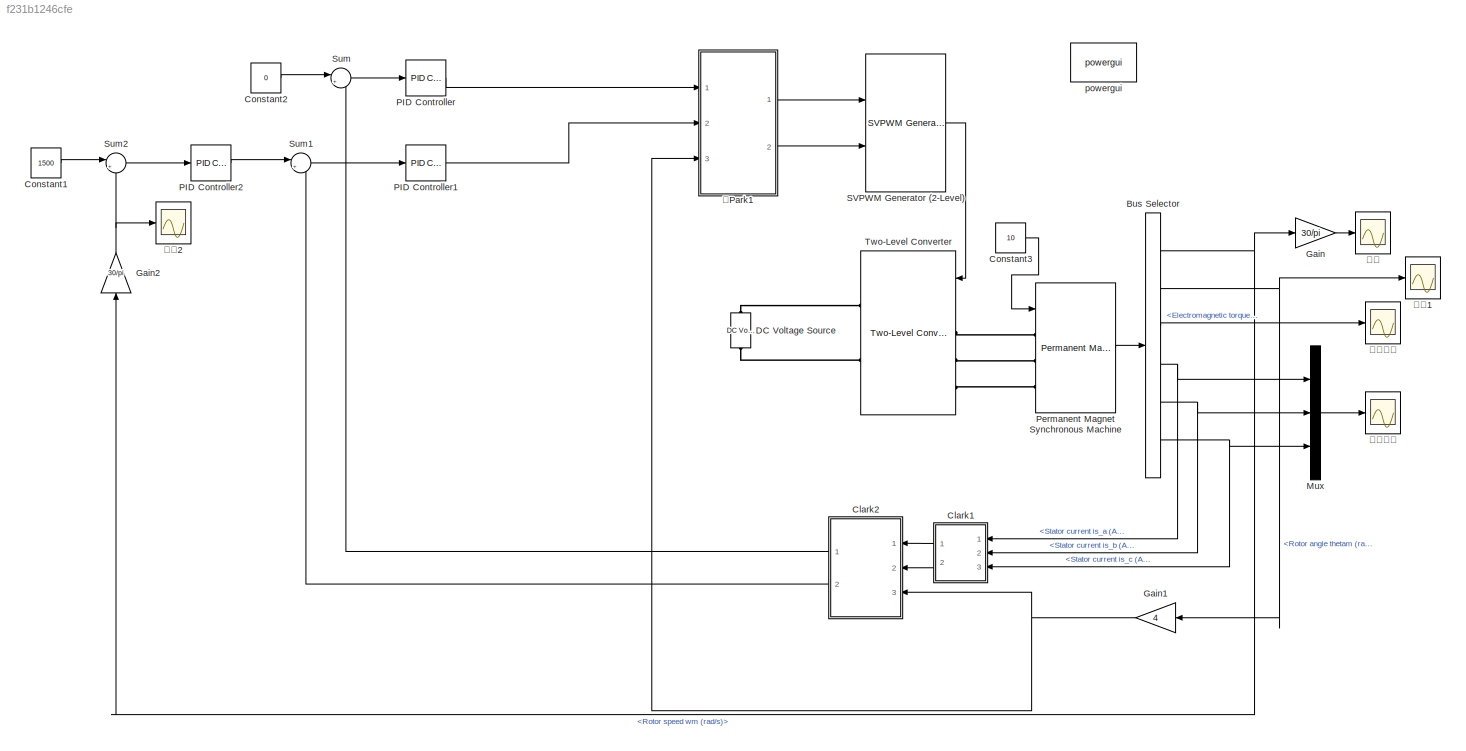
MODEL slx_f231b1246cfe
KIND model
CONFIG AbsTol = auto
CONFIG FixedStep = auto
CONFIG MaxStep = auto
CONFIG MinStep = auto
CONFIG RelTol = 1e-3
CONFIG SampleTimeConstraint = Unconstrained
CONFIG Solver = VariableStepAuto
CONFIG SolverMode = Auto
CONFIG SolverName = VariableStepAuto
CONFIG StartTime = 0.0
CONFIG StopTime = 0.5
BLOCK [BusSelector] Bus Selector
  OutputSignals = Rotor speed wm (rad/s),Rotor angle thetam (rad),Electromagnetic torque Te (N*m),Stator current is_a (A),Stator current is_b (A),Stator current is_c (A)
  Ports = [1, 6]
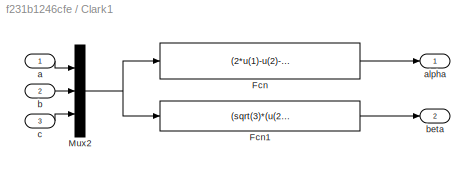
BLOCK [SubSystem] Clark1
  Ports = [3, 2]
  RequestExecContextInheritance = off
  Variant = off
BLOCK [Fcn] Clark1/Fcn
  Expr = (2*u(1)-u(2)-u(3))/3
BLOCK [Fcn] Clark1/Fcn1
  Expr = (sqrt(3)*(u(2)-u(3)))/3
BLOCK [Mux] Clark1/Mux2
  DisplayOption = bar
  Inputs = 3
  Ports = [3, 1]
BLOCK [Inport] Clark1/a
  IconDisplay = Port number
BLOCK [Outport] Clark1/alpha
  IconDisplay = Port number
BLOCK [Inport] Clark1/b
  IconDisplay = Port number
  Port = 2
BLOCK [Outport] Clark1/beta
  IconDisplay = Port number
  Port = 2
BLOCK [Inport] Clark1/c
  IconDisplay = Port number
  Port = 3
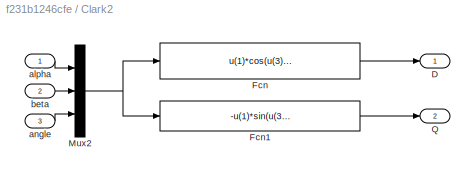
BLOCK [SubSystem] Clark2
  Ports = [3, 2]
  RequestExecContextInheritance = off
  Variant = off
BLOCK [Outport] Clark2/D
  IconDisplay = Port number
BLOCK [Fcn] Clark2/Fcn
  Expr = u(1)*cos(u(3))+u(2)*sin(u(3))
BLOCK [Fcn] Clark2/Fcn1
  Expr = -u(1)*sin(u(3))+u(2)*cos(u(3))
BLOCK [Mux] Clark2/Mux2
  DisplayOption = bar
  Inputs = 3
  Ports = [3, 1]
BLOCK [Outport] Clark2/Q
  IconDisplay = Port number
  Port = 2
BLOCK [Inport] Clark2/alpha
  IconDisplay = Port number
BLOCK [Inport] Clark2/angle
  IconDisplay = Port number
  Port = 3
BLOCK [Inport] Clark2/beta
  IconDisplay = Port number
  Port = 2
BLOCK [Constant] Constant1
  Value = 1500
BLOCK [Constant] Constant2
  Value = 0
BLOCK [Constant] Constant3
  Value = 10
BLOCK [Reference] DC Voltage Source  REF=powerlib/Electrical
Sources/DC Voltage Source
  Ports = [0, 0, 0, 0, 0, 1, 1]
  SourceBlock = powerlib/Electrical\nSources/DC Voltage Source
  SourceType = DC Voltage Source
BLOCK [Gain] Gain
  Gain = 30/pi
  OutDataTypeStr = Inherit: Inherit via internal rule
  ParamDataTypeStr = Inherit: Inherit via internal rule
  SaturateOnIntegerOverflow = off
BLOCK [Gain] Gain1
  Gain = 4
  OutDataTypeStr = Inherit: Inherit via internal rule
  ParamDataTypeStr = Inherit: Inherit via internal rule
  SaturateOnIntegerOverflow = off
BLOCK [Gain] Gain2
  Gain = 30/pi
  OutDataTypeStr = Inherit: Inherit via internal rule
  ParamDataTypeStr = Inherit: Inherit via internal rule
  SaturateOnIntegerOverflow = off
BLOCK [Mux] Mux
  DisplayOption = bar
  Inputs = 3
  Ports = [3, 1]
BLOCK [Reference] PID Controller  REF=simulink/Continuous/PID Controller
  Ports = [1, 1]
  SourceBlock = simulink/Continuous/PID Controller
  SourceType = PID 1dof
BLOCK [Reference] PID Controller1  REF=simulink/Continuous/PID Controller
  Ports = [1, 1]
  SourceBlock = simulink/Continuous/PID Controller
  SourceType = PID 1dof
BLOCK [Reference] PID Controller2  REF=simulink/Continuous/PID Controller
  Ports = [1, 1]
  SourceBlock = simulink/Continuous/PID Controller
  SourceType = PID 1dof
BLOCK [Reference] Permanent Magnet Synchronous Machine  REF=powerlib/Machines/Permanent Magnet
Synchronous Machine
  Ports = [1, 1, 0, 0, 0, 3]
  SourceBlock = powerlib/Machines/Permanent Magnet\nSynchronous Machine
  SourceType = Permanent Magnet Synchronous Machine
BLOCK [Reference] SVPWM Generator (2-Level)  REF=powerlib_meascontrol/Pulse & Signal
Generators/SVPWM Generator
(2-Level)
  Ports = [2, 1]
  SourceBlock = powerlib_meascontrol/Pulse & Signal\nGenerators/SVPWM Generator\n(2-Level)
  SourceType = SVPWM Generator (2-Level)
BLOCK [Sum] Sum
  IconShape = round
  InputSameDT = off
  Inputs = |+-
  OutDataTypeStr = Inherit: Inherit via internal rule
  Ports = [2, 1]
  SaturateOnIntegerOverflow = off
BLOCK [Sum] Sum1
  IconShape = round
  InputSameDT = off
  Inputs = |+-
  OutDataTypeStr = Inherit: Inherit via internal rule
  Ports = [2, 1]
  SaturateOnIntegerOverflow = off
BLOCK [Sum] Sum2
  IconShape = round
  InputSameDT = off
  Inputs = |+-
  OutDataTypeStr = Inherit: Inherit via internal rule
  Ports = [2, 1]
  SaturateOnIntegerOverflow = off
BLOCK [Reference] Two-Level Converter  REF=powerlib/Power
Electronics/Two-Level Converter
  Ports = [2, 0, 0, 0, 0, 3, 2]
  SourceBlock = powerlib/Power\nElectronics/Two-Level Converter
  SourceType = Two-Level Converter
BLOCK [Reference] powergui  REF=powerlib/powergui
  Ports = []
  Priority = 1
  SourceBlock = powerlib/powergui
  SourceType = PSB option menu block
  UserDataPersistent = on
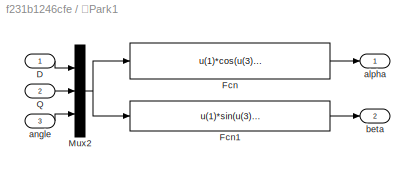
BLOCK [SubSystem] 反Park1
  Ports = [3, 2]
  RequestExecContextInheritance = off
  Variant = off
BLOCK [Inport] 反Park1/D
  IconDisplay = Port number
BLOCK [Fcn] 反Park1/Fcn
  Expr = u(1)*cos(u(3))-u(2)*sin(u(3))
BLOCK [Fcn] 反Park1/Fcn1
  Expr = u(1)*sin(u(3))+u(2)*cos(u(3))
BLOCK [Mux] 反Park1/Mux2
  DisplayOption = bar
  Inputs = 3
  Ports = [3, 1]
BLOCK [Inport] 反Park1/Q
  IconDisplay = Port number
  Port = 2
BLOCK [Outport] 反Park1/alpha
  IconDisplay = Port number
BLOCK [Inport] 反Park1/angle
  IconDisplay = Port number
  Port = 3
BLOCK [Outport] 反Park1/beta
  IconDisplay = Port number
  Port = 2
BLOCK [Scope] 定子电流
  Ports = [1]
  ScopeSpecificationString = Simulink.scopes.TimeScopeBlockCfg('CurrentConfiguration', extmgr.ConfigurationSet(extmgr.Configuration('Core','General UI',true),extmgr.Configuration('Core','Source UI',true),extmgr.Configuration('Sources','WiredSimulink',true,'DataLoggingVariableName','ScopeData3','DataLoggingSaveFormat','Array','DataLoggingDecimation','1','DataLoggingDecimateData',true),extmgr.Configuration('Visuals','Time Domai...<+1614ch>
BLOCK [Scope] 电磁转矩
  Ports = [1]
  ScopeSpecificationString = Simulink.scopes.TimeScopeBlockCfg('CurrentConfiguration', extmgr.ConfigurationSet(extmgr.Configuration('Core','General UI',true),extmgr.Configuration('Core','Source UI',true),extmgr.Configuration('Sources','WiredSimulink',true,'DataLoggingVariableName','ScopeData2','DataLoggingSaveFormat','Array','DataLoggingDecimation','1','DataLoggingDecimateData',true),extmgr.Configuration('Visuals','Time Domai...<+1514ch>
BLOCK [Scope] 转速
  Ports = [1]
  ScopeSpecificationString = Simulink.scopes.TimeScopeBlockCfg('CurrentConfiguration', extmgr.ConfigurationSet(extmgr.Configuration('Core','General UI',true),extmgr.Configuration('Core','Source UI',true),extmgr.Configuration('Sources','WiredSimulink',true),extmgr.Configuration('Visuals','Time Domain',true,'SerializedDisplays',{struct('MinYLimReal','-192.67389','MaxYLimReal','1719.21652','YLabelReal','','MinYLimMag',' 0.00000'...<+1418ch>
BLOCK [Scope] 转速1
  Ports = [1]
  ScopeSpecificationString = Simulink.scopes.TimeScopeBlockCfg('CurrentConfiguration', extmgr.ConfigurationSet(extmgr.Configuration('Core','General UI',true),extmgr.Configuration('Core','Source UI',true),extmgr.Configuration('Sources','WiredSimulink',true,'DataLoggingVariableName','ScopeData1','DataLoggingSaveFormat','Array','DataLoggingDecimation','1','DataLoggingDecimateData',true),extmgr.Configuration('Visuals','Time Domai...<+1505ch>
BLOCK [Scope] 转速2
  Ports = [1]
  ScopeSpecificationString = Simulink.scopes.TimeScopeBlockCfg('CurrentConfiguration', extmgr.ConfigurationSet(extmgr.Configuration('Core','General UI',true),extmgr.Configuration('Core','Source UI',true),extmgr.Configuration('Sources','WiredSimulink',true,'DataLoggingVariableName','ScopeData4'),extmgr.Configuration('Visuals','Time Domain',true,'SerializedDisplays',{struct('MinYLimReal','-192.67389','MaxYLimReal','1719.21652',...<+1438ch>
NET Bus Selector:1 -> Gain2:1, Gain:1
NET Bus Selector:2 -> Gain1:1, 转速1:1
LINE Bus Selector:3 -> 电磁转矩:1
NET Bus Selector:4 -> Clark1:1, Mux:1
NET Bus Selector:5 -> Clark1:2, Mux:2
NET Bus Selector:6 -> Clark1:3, Mux:3
LINE Clark1/Fcn1:1 -> Clark1/beta:1
LINE Clark1/Fcn:1 -> Clark1/alpha:1
NET Clark1/Mux2:1 -> Clark1/Fcn1:1, Clark1/Fcn:1
LINE Clark1/a:1 -> Clark1/Mux2:1
LINE Clark1/b:1 -> Clark1/Mux2:2
LINE Clark1/c:1 -> Clark1/Mux2:3
LINE Clark1:1 -> Clark2:1
LINE Clark1:2 -> Clark2:2
LINE Clark2/Fcn1:1 -> Clark2/Q:1
LINE Clark2/Fcn:1 -> Clark2/D:1
NET Clark2/Mux2:1 -> Clark2/Fcn1:1, Clark2/Fcn:1
LINE Clark2/alpha:1 -> Clark2/Mux2:1
LINE Clark2/angle:1 -> Clark2/Mux2:3
LINE Clark2/beta:1 -> Clark2/Mux2:2
LINE Clark2:1 -> Sum:2
LINE Clark2:2 -> Sum1:2
LINE Constant1:1 -> Sum2:1
LINE Constant2:1 -> Sum:1
LINE Constant3:1 -> Permanent Magnet Synchronous Machine:1
NET Gain1:1 -> Clark2:3, 反Park1:3
NET Gain2:1 -> Sum2:2, 转速2:1
LINE Gain:1 -> 转速:1
LINE Mux:1 -> 定子电流:1
LINE PID Controller1:1 -> 反Park1:2
LINE PID Controller2:1 -> Sum1:1
LINE PID Controller:1 -> 反Park1:1
LINE Permanent Magnet Synchronous Machine:1 -> Bus Selector:1
LINE SVPWM Generator (2-Level):1 -> Two-Level Converter:1
LINE Sum1:1 -> PID Controller1:1
LINE Sum2:1 -> PID Controller2:1
LINE Sum:1 -> PID Controller:1
LINE 反Park1/D:1 -> 反Park1/Mux2:1
LINE 反Park1/Fcn1:1 -> 反Park1/beta:1
LINE 反Park1/Fcn:1 -> 反Park1/alpha:1
NET 反Park1/Mux2:1 -> 反Park1/Fcn1:1, 反Park1/Fcn:1
LINE 反Park1/Q:1 -> 反Park1/Mux2:2
LINE 反Park1/angle:1 -> 反Park1/Mux2:3
LINE 反Park1:1 -> SVPWM Generator (2-Level):1
LINE 反Park1:2 -> SVPWM Generator (2-Level):2
PLINE DC Voltage Source:LConn1 -- Two-Level Converter:RConn2
PLINE DC Voltage Source:RConn1 -- Two-Level Converter:RConn1
PLINE Permanent Magnet Synchronous Machine:LConn1 -- Two-Level Converter:LConn1
PLINE Permanent Magnet Synchronous Machine:LConn2 -- Two-Level Converter:LConn2
PLINE Permanent Magnet Synchronous Machine:LConn3 -- Two-Level Converter:LConn3
note: NET lines group one-source signal fan-out (src -> all destinations, sorted); 1:1 wires keep LINE
